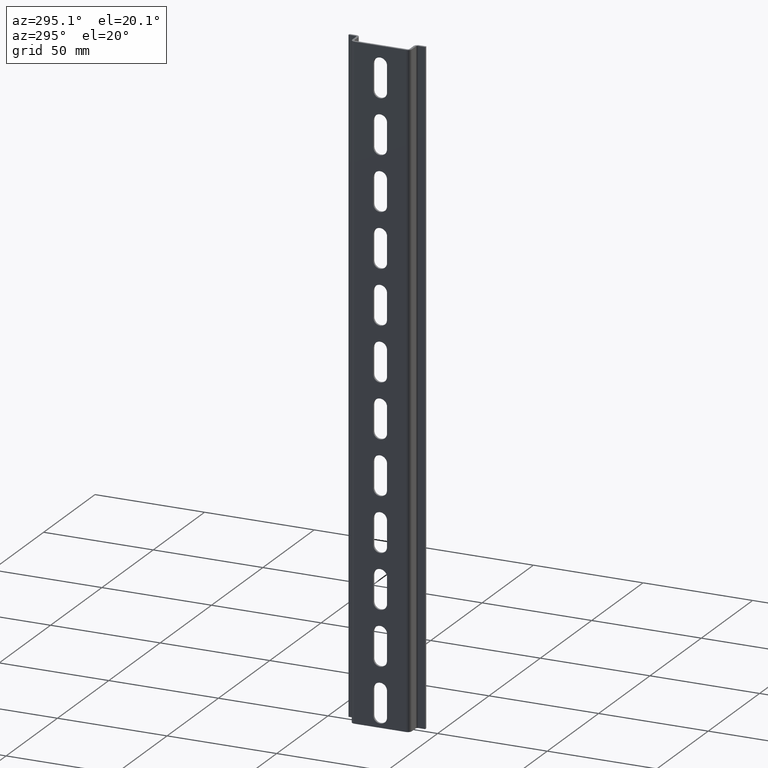
[diagram: clean part render]
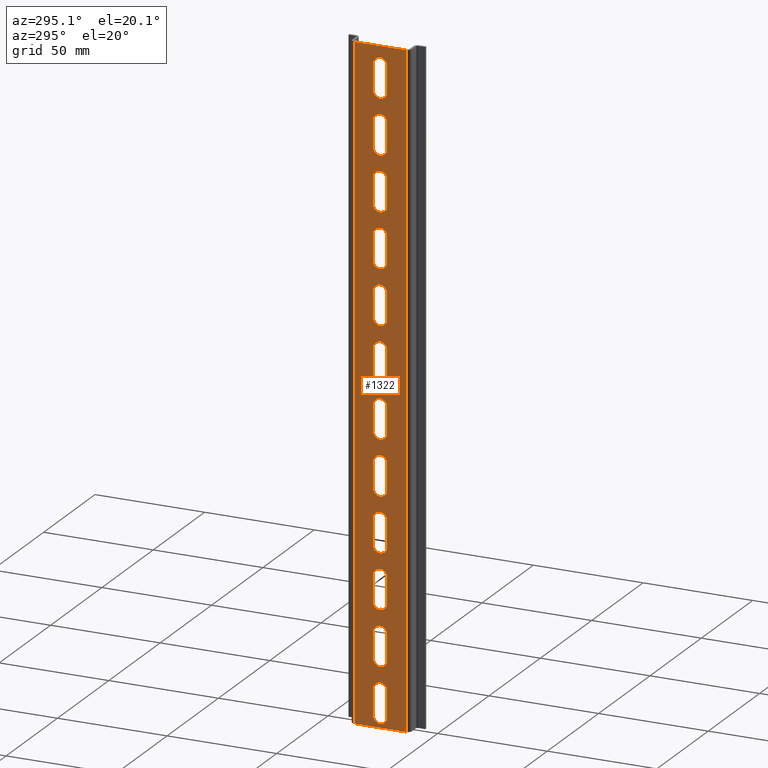
[diagram: same view with one face highlighted and labeled with its STEP entity id]
A machine part, auxiliary view. The second image highlights one B-rep face of the part: STEP entity #1322.
In plain terms, the highlighted planar face has unit normal (1, -0, 0).
Its self-contained STEP definition (entity closure, byte-faithful):
#3 = VERTEX_POINT ( 'NONE', #200 ) ;
#9 = ORIENTED_EDGE ( 'NONE', *, *, #1082, .T. ) ;
#11 = VERTEX_POINT ( 'NONE', #41 ) ;
#14 = VERTEX_POINT ( 'NONE', #197 ) ;
#15 = VERTEX_POINT ( 'NONE', #247 ) ;
#16 = VERTEX_POINT ( 'NONE', #249 ) ;
#18 = ORIENTED_EDGE ( 'NONE', *, *, #995, .T. ) ;
#19 = ORIENTED_EDGE ( 'NONE', *, *, #1011, .T. ) ;
#24 = VERTEX_POINT ( 'NONE', #206 ) ;
#29 = VERTEX_POINT ( 'NONE', #254 ) ;
#30 = ORIENTED_EDGE ( 'NONE', *, *, #1360, .T. ) ;
#31 = VERTEX_POINT ( 'NONE', #219 ) ;
#35 = VERTEX_POINT ( 'NONE', #48 ) ;
#38 = VERTEX_POINT ( 'NONE', #223 ) ;
#41 = CARTESIAN_POINT ( 'NONE',  ( 1384.825919215657900, 469.1188036583252500, 126.8499999999999700 ) ) ;
#43 = ORIENTED_EDGE ( 'NONE', *, *, #1012, .T. ) ;
#47 = VERTEX_POINT ( 'NONE', #248 ) ;
#48 = CARTESIAN_POINT ( 'NONE',  ( 1384.825919215657900, 469.1188036583252500, 76.84999999999995200 ) ) ;
#49 = ORIENTED_EDGE ( 'NONE', *, *, #1004, .T. ) ;
#52 = VERTEX_POINT ( 'NONE', #211 ) ;
#55 = VERTEX_POINT ( 'NONE', #216 ) ;
#58 = VERTEX_POINT ( 'NONE', #227 ) ;
#61 = ORIENTED_EDGE ( 'NONE', *, *, #1008, .T. ) ;
#62 = ORIENTED_EDGE ( 'NONE', *, *, #994, .T. ) ;
#65 = VERTEX_POINT ( 'NONE', #208 ) ;
#69 = VERTEX_POINT ( 'NONE', #253 ) ;
#72 = VERTEX_POINT ( 'NONE', #245 ) ;
#87 = VERTEX_POINT ( 'NONE', #193 ) ;
#107 = VERTEX_POINT ( 'NONE', #316 ) ;
#119 = VERTEX_POINT ( 'NONE', #274 ) ;
#125 = VERTEX_POINT ( 'NONE', #295 ) ;
#127 = VERTEX_POINT ( 'NONE', #267 ) ;
#129 = VERTEX_POINT ( 'NONE', #314 ) ;
#130 = VERTEX_POINT ( 'NONE', #287 ) ;
#131 = VERTEX_POINT ( 'NONE', #269 ) ;
#132 = VERTEX_POINT ( 'NONE', #282 ) ;
#135 = VERTEX_POINT ( 'NONE', #276 ) ;
#137 = VERTEX_POINT ( 'NONE', #272 ) ;
#139 = VERTEX_POINT ( 'NONE', #296 ) ;
#140 = VERTEX_POINT ( 'NONE', #302 ) ;
#141 = VERTEX_POINT ( 'NONE', #308 ) ;
#143 = VERTEX_POINT ( 'NONE', #273 ) ;
#144 = VERTEX_POINT ( 'NONE', #258 ) ;
#145 = VERTEX_POINT ( 'NONE', #277 ) ;
#146 = VERTEX_POINT ( 'NONE', #303 ) ;
#147 = VERTEX_POINT ( 'NONE', #310 ) ;
#149 = VERTEX_POINT ( 'NONE', #304 ) ;
#150 = VERTEX_POINT ( 'NONE', #263 ) ;
#151 = VERTEX_POINT ( 'NONE', #288 ) ;
#152 = VERTEX_POINT ( 'NONE', #280 ) ;
#155 = VERTEX_POINT ( 'NONE', #299 ) ;
#156 = VERTEX_POINT ( 'NONE', #300 ) ;
#157 = VERTEX_POINT ( 'NONE', #311 ) ;
#160 = VERTEX_POINT ( 'NONE', #305 ) ;
#161 = VERTEX_POINT ( 'NONE', #291 ) ;
#162 = VERTEX_POINT ( 'NONE', #306 ) ;
#163 = VERTEX_POINT ( 'NONE', #285 ) ;
#164 = VERTEX_POINT ( 'NONE', #312 ) ;
#165 = VERTEX_POINT ( 'NONE', #337 ) ;
#166 = VERTEX_POINT ( 'NONE', #357 ) ;
#167 = VERTEX_POINT ( 'NONE', #358 ) ;
#168 = VERTEX_POINT ( 'NONE', #338 ) ;
#169 = VERTEX_POINT ( 'NONE', #322 ) ;
#172 = VERTEX_POINT ( 'NONE', #327 ) ;
#174 = VERTEX_POINT ( 'NONE', #339 ) ;
#176 = VERTEX_POINT ( 'NONE', #352 ) ;
#177 = VERTEX_POINT ( 'NONE', #353 ) ;
#178 = VERTEX_POINT ( 'NONE', #355 ) ;
#179 = VERTEX_POINT ( 'NONE', #354 ) ;
#183 = VERTEX_POINT ( 'NONE', #340 ) ;
#186 = VERTEX_POINT ( 'NONE', #328 ) ;
#189 = VERTEX_POINT ( 'NONE', #330 ) ;
#190 = VERTEX_POINT ( 'NONE', #331 ) ;
#193 = CARTESIAN_POINT ( 'NONE',  ( 1384.825919215657900, 472.2688036583252800, 255.0000000000000000 ) ) ;
#197 = CARTESIAN_POINT ( 'NONE',  ( 1384.825919215657900, 472.2688036583252800, 180.0000000000000000 ) ) ;
#200 = CARTESIAN_POINT ( 'NONE',  ( 1384.825919215657900, 472.2688036583252800, 30.00000000000000000 ) ) ;
#206 = CARTESIAN_POINT ( 'NONE',  ( 1384.825919215657900, 472.2688036583252800, 79.99999999999998600 ) ) ;
#208 = CARTESIAN_POINT ( 'NONE',  ( 1384.825919215657900, 469.1188036583252500, 201.8499999999999700 ) ) ;
#211 = CARTESIAN_POINT ( 'NONE',  ( 1384.825919215657900, 472.2688036583252800, 104.9999999999999900 ) ) ;
#216 = CARTESIAN_POINT ( 'NONE',  ( 1384.825919215657900, 469.1188036583252500, 151.8499999999999700 ) ) ;
#219 = CARTESIAN_POINT ( 'NONE',  ( 1384.825919215657900, 469.1188036583252500, 101.8499999999999400 ) ) ;
#223 = CARTESIAN_POINT ( 'NONE',  ( 1384.825919215657900, 472.2688036583252800, 54.99999999999999300 ) ) ;
#227 = CARTESIAN_POINT ( 'NONE',  ( 1384.825919215657900, 469.1188036583252500, 1.849999999999962800 ) ) ;
#245 = CARTESIAN_POINT ( 'NONE',  ( 1384.825919215657900, 472.2688036583252800, 230.0000000000000000 ) ) ;
#246 = VERTEX_POINT ( 'NONE', #343 ) ;
#247 = CARTESIAN_POINT ( 'NONE',  ( 1384.825919215657900, 469.1188036583252500, 51.84999999999995200 ) ) ;
#248 = CARTESIAN_POINT ( 'NONE',  ( 1384.825919215657900, 472.2688036583252800, 5.000000000000004400 ) ) ;
#249 = CARTESIAN_POINT ( 'NONE',  ( 1384.825919215657900, 472.2688036583252800, 155.0000000000000000 ) ) ;
#253 = CARTESIAN_POINT ( 'NONE',  ( 1384.825919215657900, 469.1188036583252500, 26.84999999999995900 ) ) ;
#254 = CARTESIAN_POINT ( 'NONE',  ( 1384.825919215657900, 469.1188036583252500, 176.8499999999999700 ) ) ;
#258 = CARTESIAN_POINT ( 'NONE',  ( 1384.825919215657900, 469.1188036583252500, 294.8500000000000800 ) ) ;
#263 = CARTESIAN_POINT ( 'NONE',  ( 1384.825919215657900, 472.2688036583252800, 41.70000000000004500 ) ) ;
#267 = CARTESIAN_POINT ( 'NONE',  ( 1384.825919215657900, 469.1188036583252500, 226.8499999999999700 ) ) ;
#269 = CARTESIAN_POINT ( 'NONE',  ( 1384.825919215657900, 472.2688036583252800, 141.7000000000000500 ) ) ;
#272 = CARTESIAN_POINT ( 'NONE',  ( 1384.825919215657900, 465.9688036583252100, 130.0000000000000000 ) ) ;
#273 = CARTESIAN_POINT ( 'NONE',  ( 1384.825919215657900, 472.2688036583252800, 91.70000000000003100 ) ) ;
#274 = CARTESIAN_POINT ( 'NONE',  ( 1384.825919215657900, 472.2688036583252800, 130.0000000000000000 ) ) ;
#276 = CARTESIAN_POINT ( 'NONE',  ( 1384.825919215657900, 465.9688036583252100, 5.000000000000004400 ) ) ;
#277 = CARTESIAN_POINT ( 'NONE',  ( 1384.825919215657900, 472.2688036583252800, 266.7000000000000500 ) ) ;
#280 = CARTESIAN_POINT ( 'NONE',  ( 1384.825919215657900, 465.9688036583252100, 104.9999999999999900 ) ) ;
#282 = CARTESIAN_POINT ( 'NONE',  ( 1384.825919215657900, 465.9688036583252100, 241.7000000000000500 ) ) ;
#285 = CARTESIAN_POINT ( 'NONE',  ( 1384.825919215657900, 465.9688036583252100, 216.7000000000000500 ) ) ;
#287 = CARTESIAN_POINT ( 'NONE',  ( 1384.825919215657900, 465.9688036583252100, 166.7000000000000500 ) ) ;
#288 = CARTESIAN_POINT ( 'NONE',  ( 1384.825919215657900, 465.9688036583252100, 66.70000000000003100 ) ) ;
#291 = CARTESIAN_POINT ( 'NONE',  ( 1384.825919215657900, 465.9688036583252700, 291.7000000000000500 ) ) ;
#295 = CARTESIAN_POINT ( 'NONE',  ( 1384.825919215657900, 472.2688036583252800, 205.0000000000000300 ) ) ;
#296 = CARTESIAN_POINT ( 'NONE',  ( 1384.825919215657900, 472.2688036583252300, 280.0000000000000000 ) ) ;
#299 = CARTESIAN_POINT ( 'NONE',  ( 1384.825919215657900, 472.2688036583252800, 116.7000000000000300 ) ) ;
#300 = CARTESIAN_POINT ( 'NONE',  ( 1384.825919215657900, 472.2688036583252800, 166.7000000000000500 ) ) ;
#302 = CARTESIAN_POINT ( 'NONE',  ( 1384.825919215657900, 457.3188036583254100, 0.0000000000000000000 ) ) ;
#303 = CARTESIAN_POINT ( 'NONE',  ( 1384.825919215657900, 465.9688036583252100, 191.7000000000000500 ) ) ;
#304 = CARTESIAN_POINT ( 'NONE',  ( 1384.825919215657900, 465.9688036583252100, 41.70000000000004500 ) ) ;
#305 = CARTESIAN_POINT ( 'NONE',  ( 1384.825919215657900, 465.9688036583252100, 180.0000000000000000 ) ) ;
#306 = CARTESIAN_POINT ( 'NONE',  ( 1384.825919215657900, 472.2688036583252800, 216.7000000000000500 ) ) ;
#308 = CARTESIAN_POINT ( 'NONE',  ( 1384.825919215657900, 465.9688036583252100, 54.99999999999999300 ) ) ;
#310 = CARTESIAN_POINT ( 'NONE',  ( 1384.825919215657900, 472.2688036583252800, 191.7000000000000500 ) ) ;
#311 = CARTESIAN_POINT ( 'NONE',  ( 1384.825919215657900, 472.2688036583252800, 241.7000000000000500 ) ) ;
#312 = CARTESIAN_POINT ( 'NONE',  ( 1384.825919215657900, 465.9688036583252100, 91.70000000000003100 ) ) ;
#314 = CARTESIAN_POINT ( 'NONE',  ( 1384.825919215657900, 472.2688036583252800, 16.70000000000004900 ) ) ;
#316 = CARTESIAN_POINT ( 'NONE',  ( 1384.825919215657900, 469.1188036583252500, 251.8499999999999700 ) ) ;
#322 = CARTESIAN_POINT ( 'NONE',  ( 1384.825919215657900, 480.9188036583253200, 300.0000000000000000 ) ) ;
#327 = CARTESIAN_POINT ( 'NONE',  ( 1384.825919215657900, 465.9688036583252100, 255.0000000000000000 ) ) ;
#328 = CARTESIAN_POINT ( 'NONE',  ( 1384.825919215657900, 465.9688036583252100, 29.99999999999997200 ) ) ;
#330 = CARTESIAN_POINT ( 'NONE',  ( 1384.825919215657900, 465.9688036583252100, 116.7000000000000300 ) ) ;
#331 = CARTESIAN_POINT ( 'NONE',  ( 1384.825919215657900, 480.9188036583253200, 0.0000000000000000000 ) ) ;
#337 = CARTESIAN_POINT ( 'NONE',  ( 1384.825919215657900, 457.3188036583254100, 300.0000000000000000 ) ) ;
#338 = CARTESIAN_POINT ( 'NONE',  ( 1384.825919215657900, 465.9688036583252100, 266.7000000000000500 ) ) ;
#339 = CARTESIAN_POINT ( 'NONE',  ( 1384.825919215657900, 465.9688036583252700, 280.0000000000000000 ) ) ;
#340 = CARTESIAN_POINT ( 'NONE',  ( 1384.825919215657900, 472.2688036583252300, 291.7000000000000500 ) ) ;
#343 = CARTESIAN_POINT ( 'NONE',  ( 1384.825919215657900, 472.2688036583252800, 66.70000000000003100 ) ) ;
#346 = CARTESIAN_POINT ( 'NONE',  ( 1384.825919215657900, 469.1188036583252500, 30.00000000000000000 ) ) ;
#347 = DIRECTION ( 'NONE',  ( 1.000000000000000000, -0.0000000000000000000, 0.0000000000000000000 ) ) ;
#348 = DIRECTION ( 'NONE',  ( 0.0000000000000000000, 0.0000000000000000000, -1.000000000000000000 ) ) ;
#352 = CARTESIAN_POINT ( 'NONE',  ( 1384.825919215657900, 465.9688036583252100, 155.0000000000000000 ) ) ;
#353 = CARTESIAN_POINT ( 'NONE',  ( 1384.825919215657900, 465.9688036583252100, 79.99999999999998600 ) ) ;
#354 = CARTESIAN_POINT ( 'NONE',  ( 1384.825919215657900, 465.9688036583252100, 205.0000000000000300 ) ) ;
#355 = CARTESIAN_POINT ( 'NONE',  ( 1384.825919215657900, 465.9688036583252100, 141.7000000000000500 ) ) ;
#357 = CARTESIAN_POINT ( 'NONE',  ( 1384.825919215657900, 465.9688036583252100, 16.70000000000004900 ) ) ;
#358 = CARTESIAN_POINT ( 'NONE',  ( 1384.825919215657900, 465.9688036583252100, 230.0000000000000000 ) ) ;
#377 = LINE ( 'NONE', #389, #2775 ) ;
#378 = DIRECTION ( 'NONE',  ( 1.000000000000000000, -0.0000000000000000000, 0.0000000000000000000 ) ) ;
#387 = DIRECTION ( 'NONE',  ( 0.0000000000000000000, 0.0000000000000000000, -1.000000000000000000 ) ) ;
#389 = CARTESIAN_POINT ( 'NONE',  ( 1384.825919215657900, 465.9688036583252700, 300.0000000000000000 ) ) ;
#391 = CARTESIAN_POINT ( 'NONE',  ( 1384.825919215657900, 469.1188036583252500, 66.70000000000003100 ) ) ;
#394 = DIRECTION ( 'NONE',  ( 0.0000000000000000000, 0.0000000000000000000, -1.000000000000000000 ) ) ;
#400 = LINE ( 'NONE', #402, #2739 ) ;
#402 = CARTESIAN_POINT ( 'NONE',  ( 1384.825919215657900, 465.9688036583252100, 300.0000000000000000 ) ) ;
#405 = DIRECTION ( 'NONE',  ( -0.0000000000000000000, -0.0000000000000000000, 1.000000000000000000 ) ) ;
#475 = ORIENTED_EDGE ( 'NONE', *, *, #1063, .T. ) ;
#480 = EDGE_LOOP ( 'NONE', ( #544, #533, #527, #579, #547 ) ) ;
#482 = EDGE_LOOP ( 'NONE', ( #528, #560, #529, #546, #532 ) ) ;
#485 = EDGE_LOOP ( 'NONE', ( #578, #565, #493, #496 ) ) ;
#486 = ORIENTED_EDGE ( 'NONE', *, *, #1050, .T. ) ;
#487 = ORIENTED_EDGE ( 'NONE', *, *, #1355, .T. ) ;
#489 = ORIENTED_EDGE ( 'NONE', *, *, #1024, .T. ) ;
#490 = ORIENTED_EDGE ( 'NONE', *, *, #1074, .T. ) ;
#492 = ORIENTED_EDGE ( 'NONE', *, *, #1407, .T. ) ;
#493 = ORIENTED_EDGE ( 'NONE', *, *, #993, .F. ) ;
#494 = EDGE_LOOP ( 'NONE', ( #567, #489, #475, #541, #492 ) ) ;
#495 = EDGE_LOOP ( 'NONE', ( #539, #554, #580, #557, #581 ) ) ;
#496 = ORIENTED_EDGE ( 'NONE', *, *, #991, .F. ) ;
#500 = EDGE_LOOP ( 'NONE', ( #534, #552, #530, #572, #540 ) ) ;
#502 = EDGE_LOOP ( 'NONE', ( #960, #961, #576, #558, #564 ) ) ;
#507 = EDGE_LOOP ( 'NONE', ( #543, #490, #574, #575, #535 ) ) ;
#509 = EDGE_LOOP ( 'NONE', ( #563, #559, #486, #573, #555 ) ) ;
#510 = EDGE_LOOP ( 'NONE', ( #561, #526, #538, #556, #545 ) ) ;
#513 = EDGE_LOOP ( 'NONE', ( #61, #49, #62, #18, #30 ) ) ;
#517 = ORIENTED_EDGE ( 'NONE', *, *, #1071, .T. ) ;
#520 = EDGE_LOOP ( 'NONE', ( #542, #517, #536, #531, #487 ) ) ;
#523 = EDGE_LOOP ( 'NONE', ( #43, #19, #9, #959, #963 ) ) ;
#526 = ORIENTED_EDGE ( 'NONE', *, *, #1058, .T. ) ;
#527 = ORIENTED_EDGE ( 'NONE', *, *, #1043, .T. ) ;
#528 = ORIENTED_EDGE ( 'NONE', *, *, #1030, .F. ) ;
#529 = ORIENTED_EDGE ( 'NONE', *, *, #1346, .F. ) ;
#530 = ORIENTED_EDGE ( 'NONE', *, *, #1033, .T. ) ;
#531 = ORIENTED_EDGE ( 'NONE', *, *, #1027, .T. ) ;
#532 = ORIENTED_EDGE ( 'NONE', *, *, #980, .F. ) ;
#533 = ORIENTED_EDGE ( 'NONE', *, *, #1037, .T. ) ;
#534 = ORIENTED_EDGE ( 'NONE', *, *, #1041, .T. ) ;
#535 = ORIENTED_EDGE ( 'NONE', *, *, #1315, .T. ) ;
#536 = ORIENTED_EDGE ( 'NONE', *, *, #1028, .T. ) ;
#538 = ORIENTED_EDGE ( 'NONE', *, *, #1042, .T. ) ;
#539 = ORIENTED_EDGE ( 'NONE', *, *, #1084, .T. ) ;
#540 = ORIENTED_EDGE ( 'NONE', *, *, #1312, .T. ) ;
#541 = ORIENTED_EDGE ( 'NONE', *, *, #1083, .T. ) ;
#542 = ORIENTED_EDGE ( 'NONE', *, *, #1049, .T. ) ;
#543 = ORIENTED_EDGE ( 'NONE', *, *, #1068, .T. ) ;
#544 = ORIENTED_EDGE ( 'NONE', *, *, #1044, .T. ) ;
#545 = ORIENTED_EDGE ( 'NONE', *, *, #1329, .T. ) ;
#546 = ORIENTED_EDGE ( 'NONE', *, *, #1005, .F. ) ;
#547 = ORIENTED_EDGE ( 'NONE', *, *, #1392, .T. ) ;
#552 = ORIENTED_EDGE ( 'NONE', *, *, #1046, .T. ) ;
#554 = ORIENTED_EDGE ( 'NONE', *, *, #1061, .T. ) ;
#555 = ORIENTED_EDGE ( 'NONE', *, *, #1350, .T. ) ;
#556 = ORIENTED_EDGE ( 'NONE', *, *, #1051, .T. ) ;
#557 = ORIENTED_EDGE ( 'NONE', *, *, #1045, .T. ) ;
#558 = ORIENTED_EDGE ( 'NONE', *, *, #1040, .T. ) ;
#559 = ORIENTED_EDGE ( 'NONE', *, *, #1054, .T. ) ;
#560 = ORIENTED_EDGE ( 'NONE', *, *, #1010, .F. ) ;
#561 = ORIENTED_EDGE ( 'NONE', *, *, #1056, .T. ) ;
#563 = ORIENTED_EDGE ( 'NONE', *, *, #1052, .T. ) ;
#564 = ORIENTED_EDGE ( 'NONE', *, *, #1352, .T. ) ;
#565 = ORIENTED_EDGE ( 'NONE', *, *, #1013, .F. ) ;
#567 = ORIENTED_EDGE ( 'NONE', *, *, #1080, .T. ) ;
#572 = ORIENTED_EDGE ( 'NONE', *, *, #1059, .T. ) ;
#573 = ORIENTED_EDGE ( 'NONE', *, *, #1076, .T. ) ;
#574 = ORIENTED_EDGE ( 'NONE', *, *, #1047, .T. ) ;
#575 = ORIENTED_EDGE ( 'NONE', *, *, #1034, .T. ) ;
#576 = ORIENTED_EDGE ( 'NONE', *, *, #972, .T. ) ;
#578 = ORIENTED_EDGE ( 'NONE', *, *, #1021, .F. ) ;
#579 = ORIENTED_EDGE ( 'NONE', *, *, #1060, .T. ) ;
#580 = ORIENTED_EDGE ( 'NONE', *, *, #1070, .T. ) ;
#581 = ORIENTED_EDGE ( 'NONE', *, *, #1323, .T. ) ;
#959 = ORIENTED_EDGE ( 'NONE', *, *, #964, .T. ) ;
#960 = ORIENTED_EDGE ( 'NONE', *, *, #1023, .T. ) ;
#961 = ORIENTED_EDGE ( 'NONE', *, *, #966, .T. ) ;
#963 = ORIENTED_EDGE ( 'NONE', *, *, #1344, .T. ) ;
#964 = EDGE_CURVE ( 'NONE', #186, #69, #2725, .T. ) ;
#966 = EDGE_CURVE ( 'NONE', #246, #151, #2726, .T. ) ;
#972 = EDGE_CURVE ( 'NONE', #151, #141, #400, .T. ) ;
#980 = EDGE_CURVE ( 'NONE', #174, #161, #377, .T. ) ;
#991 = EDGE_CURVE ( 'NONE', #165, #140, #2208, .T. ) ;
#993 = EDGE_CURVE ( 'NONE', #140, #190, #2201, .T. ) ;
#994 = EDGE_CURVE ( 'NONE', #166, #135, #2214, .T. ) ;
#995 = EDGE_CURVE ( 'NONE', #135, #58, #2766, .T. ) ;
#1004 = EDGE_CURVE ( 'NONE', #129, #166, #2782, .T. ) ;
#1005 = EDGE_CURVE ( 'NONE', #161, #144, #2791, .T. ) ;
#1008 = EDGE_CURVE ( 'NONE', #47, #129, #2266, .T. ) ;
#1010 = EDGE_CURVE ( 'NONE', #183, #139, #2255, .T. ) ;
#1011 = EDGE_CURVE ( 'NONE', #150, #149, #2763, .T. ) ;
#1012 = EDGE_CURVE ( 'NONE', #3, #150, #2258, .T. ) ;
#1013 = EDGE_CURVE ( 'NONE', #190, #169, #2283, .T. ) ;
#1021 = EDGE_CURVE ( 'NONE', #169, #165, #2310, .T. ) ;
#1023 = EDGE_CURVE ( 'NONE', #38, #246, #2297, .T. ) ;
#1024 = EDGE_CURVE ( 'NONE', #157, #132, #2865, .T. ) ;
#1027 = EDGE_CURVE ( 'NONE', #177, #35, #2817, .T. ) ;
#1028 = EDGE_CURVE ( 'NONE', #164, #177, #2338, .T. ) ;
#1030 = EDGE_CURVE ( 'NONE', #139, #174, #2829, .T. ) ;
#1033 = EDGE_CURVE ( 'NONE', #163, #179, #2326, .T. ) ;
#1034 = EDGE_CURVE ( 'NONE', #172, #107, #2805, .T. ) ;
#1037 = EDGE_CURVE ( 'NONE', #131, #178, #2828, .T. ) ;
#1040 = EDGE_CURVE ( 'NONE', #141, #15, #2861, .T. ) ;
#1041 = EDGE_CURVE ( 'NONE', #125, #162, #2347, .T. ) ;
#1042 = EDGE_CURVE ( 'NONE', #189, #152, #2369, .T. ) ;
#1043 = EDGE_CURVE ( 'NONE', #178, #137, #2388, .T. ) ;
#1044 = EDGE_CURVE ( 'NONE', #119, #131, #2391, .T. ) ;
#1045 = EDGE_CURVE ( 'NONE', #176, #55, #2824, .T. ) ;
#1046 = EDGE_CURVE ( 'NONE', #162, #163, #2806, .T. ) ;
#1047 = EDGE_CURVE ( 'NONE', #168, #172, #2383, .T. ) ;
#1049 = EDGE_CURVE ( 'NONE', #24, #143, #2386, .T. ) ;
#1050 = EDGE_CURVE ( 'NONE', #146, #160, #2378, .T. ) ;
#1051 = EDGE_CURVE ( 'NONE', #152, #31, #2823, .T. ) ;
#1052 = EDGE_CURVE ( 'NONE', #14, #147, #2372, .T. ) ;
#1054 = EDGE_CURVE ( 'NONE', #147, #146, #2812, .T. ) ;
#1056 = EDGE_CURVE ( 'NONE', #52, #155, #2427, .T. ) ;
#1058 = EDGE_CURVE ( 'NONE', #155, #189, #2813, .T. ) ;
#1059 = EDGE_CURVE ( 'NONE', #179, #65, #2840, .T. ) ;
#1060 = EDGE_CURVE ( 'NONE', #137, #11, #2852, .T. ) ;
#1061 = EDGE_CURVE ( 'NONE', #156, #130, #2842, .T. ) ;
#1063 = EDGE_CURVE ( 'NONE', #132, #167, #2410, .T. ) ;
#1068 = EDGE_CURVE ( 'NONE', #87, #145, #2441, .T. ) ;
#1070 = EDGE_CURVE ( 'NONE', #130, #176, #1444, .T. ) ;
#1071 = EDGE_CURVE ( 'NONE', #143, #164, #2872, .T. ) ;
#1074 = EDGE_CURVE ( 'NONE', #145, #168, #2869, .T. ) ;
#1076 = EDGE_CURVE ( 'NONE', #160, #29, #2879, .T. ) ;
#1080 = EDGE_CURVE ( 'NONE', #72, #157, #1421, .T. ) ;
#1082 = EDGE_CURVE ( 'NONE', #149, #186, #1427, .T. ) ;
#1083 = EDGE_CURVE ( 'NONE', #167, #127, #2479, .T. ) ;
#1084 = EDGE_CURVE ( 'NONE', #16, #156, #1440, .T. ) ;
#1190 = CARTESIAN_POINT ( 'NONE',  ( 1384.825919215657900, 469.1188036583252500, 230.0000000000000000 ) ) ;
#1195 = DIRECTION ( 'NONE',  ( 0.0000000000000000000, 0.0000000000000000000, -1.000000000000000000 ) ) ;
#1198 = DIRECTION ( 'NONE',  ( 1.000000000000000000, -0.0000000000000000000, 0.0000000000000000000 ) ) ;
#1261 = DIRECTION ( 'NONE',  ( 1.000000000000000000, -0.0000000000000000000, 0.0000000000000000000 ) ) ;
#1267 = CARTESIAN_POINT ( 'NONE',  ( 1384.825919215657900, 469.1188036583252500, 130.0000000000000000 ) ) ;
#1273 = DIRECTION ( 'NONE',  ( 0.0000000000000000000, 0.0000000000000000000, -1.000000000000000000 ) ) ;
#1312 = EDGE_CURVE ( 'NONE', #65, #125, #2559, .T. ) ;
#1315 = EDGE_CURVE ( 'NONE', #107, #87, #2541, .T. ) ;
#1322 = ADVANCED_FACE ( 'NONE', ( #1945, #1948, #1943, #1944, #1949, #2004, #2000, #1976, #1991, #1977, #1997, #1999, #2001 ), #1995, .F. ) ;
#1323 = EDGE_CURVE ( 'NONE', #55, #16, #2596, .T. ) ;
#1329 = EDGE_CURVE ( 'NONE', #31, #52, #2599, .T. ) ;
#1344 = EDGE_CURVE ( 'NONE', #69, #3, #2589, .T. ) ;
#1346 = EDGE_CURVE ( 'NONE', #144, #183, #2606, .T. ) ;
#1350 = EDGE_CURVE ( 'NONE', #29, #14, #2574, .T. ) ;
#1352 = EDGE_CURVE ( 'NONE', #15, #38, #2617, .T. ) ;
#1355 = EDGE_CURVE ( 'NONE', #35, #24, #2615, .T. ) ;
#1360 = EDGE_CURVE ( 'NONE', #58, #47, #2619, .T. ) ;
#1392 = EDGE_CURVE ( 'NONE', #11, #119, #2648, .T. ) ;
#1407 = EDGE_CURVE ( 'NONE', #127, #72, #2696, .T. ) ;
#1417 = DIRECTION ( 'NONE',  ( 0.0000000000000000000, 0.0000000000000000000, -1.000000000000000000 ) ) ;
#1421 = LINE ( 'NONE', #1455, #2487 ) ;
#1422 = DIRECTION ( 'NONE',  ( 1.000000000000000000, -0.0000000000000000000, 0.0000000000000000000 ) ) ;
#1423 = DIRECTION ( 'NONE',  ( 0.0000000000000000000, 0.0000000000000000000, -1.000000000000000000 ) ) ;
#1427 = LINE ( 'NONE', #1442, #2462 ) ;
#1428 = DIRECTION ( 'NONE',  ( 0.0000000000000000000, 0.0000000000000000000, 1.000000000000000000 ) ) ;
#1431 = DIRECTION ( 'NONE',  ( 0.0000000000000000000, 0.0000000000000000000, -1.000000000000000000 ) ) ;
#1432 = DIRECTION ( 'NONE',  ( 1.000000000000000000, -0.0000000000000000000, 0.0000000000000000000 ) ) ;
#1435 = CARTESIAN_POINT ( 'NONE',  ( 1384.825919215657900, 465.9688036583252100, 300.0000000000000000 ) ) ;
#1440 = LINE ( 'NONE', #1451, #2507 ) ;
#1442 = CARTESIAN_POINT ( 'NONE',  ( 1384.825919215657900, 465.9688036583252100, 300.0000000000000000 ) ) ;
#1444 = LINE ( 'NONE', #1435, #2871 ) ;
#1445 = CARTESIAN_POINT ( 'NONE',  ( 1384.825919215657900, 469.1188036583252500, 180.0000000000000000 ) ) ;
#1450 = DIRECTION ( 'NONE',  ( 0.0000000000000000000, 0.0000000000000000000, -1.000000000000000000 ) ) ;
#1451 = CARTESIAN_POINT ( 'NONE',  ( 1384.825919215657900, 472.2688036583252800, 300.0000000000000000 ) ) ;
#1453 = CARTESIAN_POINT ( 'NONE',  ( 1384.825919215657900, 469.1188036583252500, 266.7000000000000500 ) ) ;
#1455 = CARTESIAN_POINT ( 'NONE',  ( 1384.825919215657900, 472.2688036583252800, 300.0000000000000000 ) ) ;
#1456 = DIRECTION ( 'NONE',  ( 0.0000000000000000000, 0.0000000000000000000, -1.000000000000000000 ) ) ;
#1457 = DIRECTION ( 'NONE',  ( 1.000000000000000000, -0.0000000000000000000, 0.0000000000000000000 ) ) ;
#1458 = CARTESIAN_POINT ( 'NONE',  ( 1384.825919215657900, 469.1188036583252500, 91.70000000000003100 ) ) ;
#1476 = DIRECTION ( 'NONE',  ( 0.0000000000000000000, 0.0000000000000000000, 1.000000000000000000 ) ) ;
#1498 = DIRECTION ( 'NONE',  ( 1.000000000000000000, -0.0000000000000000000, 0.0000000000000000000 ) ) ;
#1505 = CARTESIAN_POINT ( 'NONE',  ( 1384.825919215657900, 469.1188036583252500, 230.0000000000000000 ) ) ;
#1510 = DIRECTION ( 'NONE',  ( 0.0000000000000000000, 0.0000000000000000000, -1.000000000000000000 ) ) ;
#1936 = DIRECTION ( 'NONE',  ( 0.0000000000000000000, 0.0000000000000000000, -1.000000000000000000 ) ) ;
#1943 = FACE_BOUND ( 'NONE', #502, .T. ) ;
#1944 = FACE_BOUND ( 'NONE', #520, .T. ) ;
#1945 = FACE_BOUND ( 'NONE', #513, .T. ) ;
#1946 = DIRECTION ( 'NONE',  ( 0.0000000000000000000, 0.0000000000000000000, -1.000000000000000000 ) ) ;
#1948 = FACE_BOUND ( 'NONE', #523, .T. ) ;
#1949 = FACE_BOUND ( 'NONE', #510, .T. ) ;
#1959 = CARTESIAN_POINT ( 'NONE',  ( 1384.825919215657900, 469.1188036583252500, 205.0000000000000300 ) ) ;
#1964 = CARTESIAN_POINT ( 'NONE',  ( 1384.825919215657900, 469.1188036583252500, 255.0000000000000000 ) ) ;
#1965 = DIRECTION ( 'NONE',  ( 1.000000000000000000, -0.0000000000000000000, 0.0000000000000000000 ) ) ;
#1966 = DIRECTION ( 'NONE',  ( 1.000000000000000000, -0.0000000000000000000, 0.0000000000000000000 ) ) ;
#1967 = CARTESIAN_POINT ( 'NONE',  ( 1384.825919215657900, 441.1357542965276400, 300.0000000000000000 ) ) ;
#1976 = FACE_BOUND ( 'NONE', #509, .T. ) ;
#1977 = FACE_BOUND ( 'NONE', #494, .T. ) ;
#1979 = DIRECTION ( 'NONE',  ( 1.000000000000000000, -0.0000000000000000000, 0.0000000000000000000 ) ) ;
#1986 = DIRECTION ( 'NONE',  ( 1.000000000000000000, -0.0000000000000000000, 0.0000000000000000000 ) ) ;
#1990 = DIRECTION ( 'NONE',  ( 1.000000000000000000, -0.0000000000000000000, 0.0000000000000000000 ) ) ;
#1991 = FACE_BOUND ( 'NONE', #500, .T. ) ;
#1995 = PLANE ( 'NONE',  #2625 ) ;
#1997 = FACE_BOUND ( 'NONE', #507, .T. ) ;
#1998 = DIRECTION ( 'NONE',  ( 0.0000000000000000000, 0.0000000000000000000, -1.000000000000000000 ) ) ;
#1999 = FACE_OUTER_BOUND ( 'NONE', #485, .T. ) ;
#2000 = FACE_BOUND ( 'NONE', #495, .T. ) ;
#2001 = FACE_BOUND ( 'NONE', #482, .T. ) ;
#2004 = FACE_BOUND ( 'NONE', #480, .T. ) ;
#2005 = DIRECTION ( 'NONE',  ( 0.0000000000000000000, 0.0000000000000000000, -1.000000000000000000 ) ) ;
#2007 = CARTESIAN_POINT ( 'NONE',  ( 1384.825919215657900, 469.1188036583252500, 104.9999999999999900 ) ) ;
#2008 = CARTESIAN_POINT ( 'NONE',  ( 1384.825919215657900, 469.1188036583252500, 155.0000000000000000 ) ) ;
#2010 = DIRECTION ( 'NONE',  ( 0.0000000000000000000, 0.0000000000000000000, -1.000000000000000000 ) ) ;
#2020 = CARTESIAN_POINT ( 'NONE',  ( 1384.825919215657900, 469.1188036583252500, 30.00000000000000000 ) ) ;
#2022 = DIRECTION ( 'NONE',  ( 1.000000000000000000, -0.0000000000000000000, 0.0000000000000000000 ) ) ;
#2023 = DIRECTION ( 'NONE',  ( 0.0000000000000000000, 0.0000000000000000000, -1.000000000000000000 ) ) ;
#2059 = DIRECTION ( 'NONE',  ( 0.0000000000000000000, 0.0000000000000000000, 1.000000000000000000 ) ) ;
#2064 = DIRECTION ( 'NONE',  ( 1.000000000000000000, -0.0000000000000000000, 0.0000000000000000000 ) ) ;
#2066 = DIRECTION ( 'NONE',  ( 0.0000000000000000000, 0.0000000000000000000, -1.000000000000000000 ) ) ;
#2067 = DIRECTION ( 'NONE',  ( 0.0000000000000000000, 0.0000000000000000000, -1.000000000000000000 ) ) ;
#2068 = CARTESIAN_POINT ( 'NONE',  ( 1384.825919215657900, 469.1188036583252500, 54.99999999999999300 ) ) ;
#2070 = DIRECTION ( 'NONE',  ( 1.000000000000000000, -0.0000000000000000000, 0.0000000000000000000 ) ) ;
#2074 = CARTESIAN_POINT ( 'NONE',  ( 1384.825919215657900, 469.1188036583252500, 79.99999999999998600 ) ) ;
#2087 = DIRECTION ( 'NONE',  ( -1.000000000000000000, -0.0000000000000000000, -0.0000000000000000000 ) ) ;
#2090 = DIRECTION ( 'NONE',  ( 1.000000000000000000, -0.0000000000000000000, 0.0000000000000000000 ) ) ;
#2091 = CARTESIAN_POINT ( 'NONE',  ( 1384.825919215657900, 469.1188036583252500, 291.7000000000000500 ) ) ;
#2094 = DIRECTION ( 'NONE',  ( 0.0000000000000000000, 0.0000000000000000000, -1.000000000000000000 ) ) ;
#2101 = CARTESIAN_POINT ( 'NONE',  ( 1384.825919215657900, 469.1188036583252500, 180.0000000000000000 ) ) ;
#2116 = DIRECTION ( 'NONE',  ( 1.000000000000000000, -0.0000000000000000000, 0.0000000000000000000 ) ) ;
#2124 = CARTESIAN_POINT ( 'NONE',  ( 1384.825919215657900, 469.1188036583252500, 5.000000000000004400 ) ) ;
#2134 = DIRECTION ( 'NONE',  ( 0.0000000000000000000, 0.0000000000000000000, -1.000000000000000000 ) ) ;
#2201 = LINE ( 'NONE', #2225, #2770 ) ;
#2208 = LINE ( 'NONE', #2212, #2746 ) ;
#2211 = DIRECTION ( 'NONE',  ( 0.0000000000000000000, 1.000000000000000000, 0.0000000000000000000 ) ) ;
#2212 = CARTESIAN_POINT ( 'NONE',  ( 1384.825919215657900, 457.3188036583254100, 300.0000000000000000 ) ) ;
#2214 = LINE ( 'NONE', #2215, #2794 ) ;
#2215 = CARTESIAN_POINT ( 'NONE',  ( 1384.825919215657900, 465.9688036583252100, 300.0000000000000000 ) ) ;
#2217 = DIRECTION ( 'NONE',  ( 0.0000000000000000000, 0.0000000000000000000, -1.000000000000000000 ) ) ;
#2222 = CARTESIAN_POINT ( 'NONE',  ( 1384.825919215657900, 469.1188036583252500, 5.000000000000004400 ) ) ;
#2225 = CARTESIAN_POINT ( 'NONE',  ( 1384.825919215657900, 441.1357542965276400, 0.0000000000000000000 ) ) ;
#2227 = DIRECTION ( 'NONE',  ( 1.000000000000000000, -0.0000000000000000000, 0.0000000000000000000 ) ) ;
#2228 = DIRECTION ( 'NONE',  ( 0.0000000000000000000, 0.0000000000000000000, -1.000000000000000000 ) ) ;
#2229 = DIRECTION ( 'NONE',  ( 0.0000000000000000000, 0.0000000000000000000, -1.000000000000000000 ) ) ;
#2235 = DIRECTION ( 'NONE',  ( 0.0000000000000000000, 0.0000000000000000000, 1.000000000000000000 ) ) ;
#2238 = CARTESIAN_POINT ( 'NONE',  ( 1384.825919215657900, 472.2688036583252300, 300.0000000000000000 ) ) ;
#2248 = CARTESIAN_POINT ( 'NONE',  ( 1384.825919215657900, 469.1188036583252500, 16.70000000000004900 ) ) ;
#2255 = LINE ( 'NONE', #2238, #2792 ) ;
#2256 = CARTESIAN_POINT ( 'NONE',  ( 1384.825919215657900, 469.1188036583252500, 291.7000000000000500 ) ) ;
#2257 = CARTESIAN_POINT ( 'NONE',  ( 1384.825919215657900, 472.2688036583252800, 300.0000000000000000 ) ) ;
#2258 = LINE ( 'NONE', #2260, #2789 ) ;
#2260 = CARTESIAN_POINT ( 'NONE',  ( 1384.825919215657900, 472.2688036583252800, 300.0000000000000000 ) ) ;
#2261 = DIRECTION ( 'NONE',  ( 0.0000000000000000000, 0.0000000000000000000, -1.000000000000000000 ) ) ;
#2262 = DIRECTION ( 'NONE',  ( 1.000000000000000000, -0.0000000000000000000, 0.0000000000000000000 ) ) ;
#2266 = LINE ( 'NONE', #2257, #2783 ) ;
#2267 = DIRECTION ( 'NONE',  ( 0.0000000000000000000, 0.0000000000000000000, -1.000000000000000000 ) ) ;
#2271 = DIRECTION ( 'NONE',  ( 0.0000000000000000000, 0.0000000000000000000, 1.000000000000000000 ) ) ;
#2274 = DIRECTION ( 'NONE',  ( -1.000000000000000000, -0.0000000000000000000, -0.0000000000000000000 ) ) ;
#2277 = DIRECTION ( 'NONE',  ( -0.0000000000000000000, -1.000000000000000000, -0.0000000000000000000 ) ) ;
#2282 = CARTESIAN_POINT ( 'NONE',  ( 1384.825919215657900, 472.2688036583252800, 300.0000000000000000 ) ) ;
#2283 = LINE ( 'NONE', #2318, #2790 ) ;
#2284 = DIRECTION ( 'NONE',  ( -0.0000000000000000000, -0.0000000000000000000, 1.000000000000000000 ) ) ;
#2286 = DIRECTION ( 'NONE',  ( 0.0000000000000000000, 0.0000000000000000000, 1.000000000000000000 ) ) ;
#2291 = DIRECTION ( 'NONE',  ( 0.0000000000000000000, 0.0000000000000000000, -1.000000000000000000 ) ) ;
#2297 = LINE ( 'NONE', #2282, #2843 ) ;
#2302 = DIRECTION ( 'NONE',  ( 1.000000000000000000, -0.0000000000000000000, 0.0000000000000000000 ) ) ;
#2307 = CARTESIAN_POINT ( 'NONE',  ( 1384.825919215657900, 469.1188036583252500, 241.7000000000000500 ) ) ;
#2309 = DIRECTION ( 'NONE',  ( 1.000000000000000000, -0.0000000000000000000, 0.0000000000000000000 ) ) ;
#2310 = LINE ( 'NONE', #2311, #2856 ) ;
#2311 = CARTESIAN_POINT ( 'NONE',  ( 1384.825919215657900, 441.1357542965276400, 300.0000000000000000 ) ) ;
#2313 = DIRECTION ( 'NONE',  ( 0.0000000000000000000, 0.0000000000000000000, -1.000000000000000000 ) ) ;
#2316 = CARTESIAN_POINT ( 'NONE',  ( 1384.825919215657900, 469.1188036583252500, 41.70000000000004500 ) ) ;
#2318 = CARTESIAN_POINT ( 'NONE',  ( 1384.825919215657900, 480.9188036583253200, 300.0000000000000000 ) ) ;
#2319 = DIRECTION ( 'NONE',  ( 0.0000000000000000000, 0.0000000000000000000, 1.000000000000000000 ) ) ;
#2326 = LINE ( 'NONE', #2330, #2839 ) ;
#2330 = CARTESIAN_POINT ( 'NONE',  ( 1384.825919215657900, 465.9688036583252100, 300.0000000000000000 ) ) ;
#2331 = DIRECTION ( 'NONE',  ( 0.0000000000000000000, 0.0000000000000000000, -1.000000000000000000 ) ) ;
#2333 = DIRECTION ( 'NONE',  ( 1.000000000000000000, -0.0000000000000000000, 0.0000000000000000000 ) ) ;
#2335 = DIRECTION ( 'NONE',  ( 0.0000000000000000000, 0.0000000000000000000, -1.000000000000000000 ) ) ;
#2336 = DIRECTION ( 'NONE',  ( -1.000000000000000000, -0.0000000000000000000, -0.0000000000000000000 ) ) ;
#2338 = LINE ( 'NONE', #2356, #2835 ) ;
#2339 = CARTESIAN_POINT ( 'NONE',  ( 1384.825919215657900, 469.1188036583252500, 280.0000000000000000 ) ) ;
#2340 = CARTESIAN_POINT ( 'NONE',  ( 1384.825919215657900, 469.1188036583252500, 141.7000000000000500 ) ) ;
#2341 = DIRECTION ( 'NONE',  ( 0.0000000000000000000, 0.0000000000000000000, -1.000000000000000000 ) ) ;
#2344 = DIRECTION ( 'NONE',  ( 1.000000000000000000, -0.0000000000000000000, 0.0000000000000000000 ) ) ;
#2345 = DIRECTION ( 'NONE',  ( 0.0000000000000000000, 0.0000000000000000000, -1.000000000000000000 ) ) ;
#2347 = LINE ( 'NONE', #2352, #2804 ) ;
#2352 = CARTESIAN_POINT ( 'NONE',  ( 1384.825919215657900, 472.2688036583252800, 300.0000000000000000 ) ) ;
#2353 = DIRECTION ( 'NONE',  ( 1.000000000000000000, -0.0000000000000000000, 0.0000000000000000000 ) ) ;
#2356 = CARTESIAN_POINT ( 'NONE',  ( 1384.825919215657900, 465.9688036583252100, 300.0000000000000000 ) ) ;
#2357 = DIRECTION ( 'NONE',  ( 0.0000000000000000000, 0.0000000000000000000, -1.000000000000000000 ) ) ;
#2358 = CARTESIAN_POINT ( 'NONE',  ( 1384.825919215657900, 469.1188036583252500, 79.99999999999998600 ) ) ;
#2360 = DIRECTION ( 'NONE',  ( 0.0000000000000000000, 0.0000000000000000000, 1.000000000000000000 ) ) ;
#2363 = CARTESIAN_POINT ( 'NONE',  ( 1384.825919215657900, 469.1188036583252500, 255.0000000000000000 ) ) ;
#2364 = CARTESIAN_POINT ( 'NONE',  ( 1384.825919215657900, 472.2688036583252800, 300.0000000000000000 ) ) ;
#2365 = DIRECTION ( 'NONE',  ( 0.0000000000000000000, 0.0000000000000000000, -1.000000000000000000 ) ) ;
#2366 = CARTESIAN_POINT ( 'NONE',  ( 1384.825919215657900, 469.1188036583252500, 155.0000000000000000 ) ) ;
#2367 = DIRECTION ( 'NONE',  ( 0.0000000000000000000, 0.0000000000000000000, -1.000000000000000000 ) ) ;
#2368 = CARTESIAN_POINT ( 'NONE',  ( 1384.825919215657900, 465.9688036583252100, 300.0000000000000000 ) ) ;
#2369 = LINE ( 'NONE', #2402, #2849 ) ;
#2370 = DIRECTION ( 'NONE',  ( 0.0000000000000000000, 0.0000000000000000000, -1.000000000000000000 ) ) ;
#2372 = LINE ( 'NONE', #2373, #2832 ) ;
#2373 = CARTESIAN_POINT ( 'NONE',  ( 1384.825919215657900, 472.2688036583252800, 300.0000000000000000 ) ) ;
#2376 = DIRECTION ( 'NONE',  ( 0.0000000000000000000, 0.0000000000000000000, 1.000000000000000000 ) ) ;
#2378 = LINE ( 'NONE', #2368, #2825 ) ;
#2380 = DIRECTION ( 'NONE',  ( 0.0000000000000000000, 0.0000000000000000000, 1.000000000000000000 ) ) ;
#2382 = DIRECTION ( 'NONE',  ( 1.000000000000000000, -0.0000000000000000000, 0.0000000000000000000 ) ) ;
#2383 = LINE ( 'NONE', #2404, #2851 ) ;
#2384 = CARTESIAN_POINT ( 'NONE',  ( 1384.825919215657900, 465.9688036583252100, 300.0000000000000000 ) ) ;
#2386 = LINE ( 'NONE', #2364, #2838 ) ;
#2387 = CARTESIAN_POINT ( 'NONE',  ( 1384.825919215657900, 469.1188036583252500, 104.9999999999999900 ) ) ;
#2388 = LINE ( 'NONE', #2384, #2830 ) ;
#2389 = DIRECTION ( 'NONE',  ( 0.0000000000000000000, 0.0000000000000000000, -1.000000000000000000 ) ) ;
#2390 = CARTESIAN_POINT ( 'NONE',  ( 1384.825919215657900, 469.1188036583252500, 216.7000000000000500 ) ) ;
#2391 = LINE ( 'NONE', #2400, #2821 ) ;
#2392 = DIRECTION ( 'NONE',  ( 0.0000000000000000000, 0.0000000000000000000, 1.000000000000000000 ) ) ;
#2393 = DIRECTION ( 'NONE',  ( 1.000000000000000000, -0.0000000000000000000, 0.0000000000000000000 ) ) ;
#2394 = CARTESIAN_POINT ( 'NONE',  ( 1384.825919215657900, 469.1188036583252500, 54.99999999999999300 ) ) ;
#2395 = DIRECTION ( 'NONE',  ( 0.0000000000000000000, 0.0000000000000000000, -1.000000000000000000 ) ) ;
#2397 = DIRECTION ( 'NONE',  ( 0.0000000000000000000, 0.0000000000000000000, -1.000000000000000000 ) ) ;
#2398 = DIRECTION ( 'NONE',  ( 1.000000000000000000, -0.0000000000000000000, 0.0000000000000000000 ) ) ;
#2399 = DIRECTION ( 'NONE',  ( 1.000000000000000000, -0.0000000000000000000, 0.0000000000000000000 ) ) ;
#2400 = CARTESIAN_POINT ( 'NONE',  ( 1384.825919215657900, 472.2688036583252800, 300.0000000000000000 ) ) ;
#2401 = DIRECTION ( 'NONE',  ( 0.0000000000000000000, 0.0000000000000000000, 1.000000000000000000 ) ) ;
#2402 = CARTESIAN_POINT ( 'NONE',  ( 1384.825919215657900, 465.9688036583252100, 300.0000000000000000 ) ) ;
#2403 = DIRECTION ( 'NONE',  ( 0.0000000000000000000, 0.0000000000000000000, -1.000000000000000000 ) ) ;
#2404 = CARTESIAN_POINT ( 'NONE',  ( 1384.825919215657900, 465.9688036583252100, 300.0000000000000000 ) ) ;
#2405 = DIRECTION ( 'NONE',  ( 0.0000000000000000000, 0.0000000000000000000, -1.000000000000000000 ) ) ;
#2406 = DIRECTION ( 'NONE',  ( 0.0000000000000000000, 0.0000000000000000000, -1.000000000000000000 ) ) ;
#2407 = CARTESIAN_POINT ( 'NONE',  ( 1384.825919215657900, 469.1188036583252500, 130.0000000000000000 ) ) ;
#2408 = CARTESIAN_POINT ( 'NONE',  ( 1384.825919215657900, 465.9688036583252100, 300.0000000000000000 ) ) ;
#2409 = DIRECTION ( 'NONE',  ( 0.0000000000000000000, 0.0000000000000000000, -1.000000000000000000 ) ) ;
#2410 = LINE ( 'NONE', #2408, #2833 ) ;
#2412 = DIRECTION ( 'NONE',  ( 0.0000000000000000000, 0.0000000000000000000, -1.000000000000000000 ) ) ;
#2415 = DIRECTION ( 'NONE',  ( 0.0000000000000000000, 0.0000000000000000000, -1.000000000000000000 ) ) ;
#2417 = CARTESIAN_POINT ( 'NONE',  ( 1384.825919215657900, 469.1188036583252500, 116.7000000000000300 ) ) ;
#2418 = DIRECTION ( 'NONE',  ( 1.000000000000000000, -0.0000000000000000000, 0.0000000000000000000 ) ) ;
#2420 = DIRECTION ( 'NONE',  ( 1.000000000000000000, -0.0000000000000000000, 0.0000000000000000000 ) ) ;
#2424 = DIRECTION ( 'NONE',  ( 0.0000000000000000000, 0.0000000000000000000, 1.000000000000000000 ) ) ;
#2425 = DIRECTION ( 'NONE',  ( 1.000000000000000000, -0.0000000000000000000, 0.0000000000000000000 ) ) ;
#2427 = LINE ( 'NONE', #2444, #2836 ) ;
#2428 = CARTESIAN_POINT ( 'NONE',  ( 1384.825919215657900, 469.1188036583252500, 166.7000000000000500 ) ) ;
#2429 = DIRECTION ( 'NONE',  ( 1.000000000000000000, -0.0000000000000000000, 0.0000000000000000000 ) ) ;
#2432 = CARTESIAN_POINT ( 'NONE',  ( 1384.825919215657900, 469.1188036583252500, 191.7000000000000500 ) ) ;
#2439 = DIRECTION ( 'NONE',  ( 0.0000000000000000000, 0.0000000000000000000, -1.000000000000000000 ) ) ;
#2441 = LINE ( 'NONE', #2443, #2875 ) ;
#2443 = CARTESIAN_POINT ( 'NONE',  ( 1384.825919215657900, 472.2688036583252800, 300.0000000000000000 ) ) ;
#2444 = CARTESIAN_POINT ( 'NONE',  ( 1384.825919215657900, 472.2688036583252800, 300.0000000000000000 ) ) ;
#2446 = DIRECTION ( 'NONE',  ( 0.0000000000000000000, 0.0000000000000000000, 1.000000000000000000 ) ) ;
#2447 = DIRECTION ( 'NONE',  ( 1.000000000000000000, -0.0000000000000000000, 0.0000000000000000000 ) ) ;
#2449 = DIRECTION ( 'NONE',  ( 0.0000000000000000000, 0.0000000000000000000, -1.000000000000000000 ) ) ;
#2450 = CARTESIAN_POINT ( 'NONE',  ( 1384.825919215657900, 469.1188036583252500, 205.0000000000000300 ) ) ;
#2462 = VECTOR ( 'NONE', #1450, 1000.000000000000000 ) ;
#2477 = AXIS2_PLACEMENT_3D ( 'NONE', #1505, #1498, #1510 ) ;
#2479 = CIRCLE ( 'NONE', #2477, 3.150000000000041700 ) ;
#2487 = VECTOR ( 'NONE', #1428, 1000.000000000000000 ) ;
#2499 = AXIS2_PLACEMENT_3D ( 'NONE', #1445, #1432, #1423 ) ;
#2507 = VECTOR ( 'NONE', #1476, 1000.000000000000000 ) ;
#2541 = CIRCLE ( 'NONE', #2560, 3.150000000000041700 ) ;
#2554 = AXIS2_PLACEMENT_3D ( 'NONE', #1959, #1966, #1946 ) ;
#2559 = CIRCLE ( 'NONE', #2554, 3.150000000000041700 ) ;
#2560 = AXIS2_PLACEMENT_3D ( 'NONE', #1964, #1965, #1936 ) ;
#2574 = CIRCLE ( 'NONE', #2604, 3.150000000000041700 ) ;
#2575 = AXIS2_PLACEMENT_3D ( 'NONE', #2020, #2022, #2023 ) ;
#2585 = AXIS2_PLACEMENT_3D ( 'NONE', #2008, #1979, #1998 ) ;
#2589 = CIRCLE ( 'NONE', #2575, 3.150000000000041700 ) ;
#2596 = CIRCLE ( 'NONE', #2585, 3.150000000000041700 ) ;
#2599 = CIRCLE ( 'NONE', #2600, 3.150000000000041700 ) ;
#2600 = AXIS2_PLACEMENT_3D ( 'NONE', #2007, #1990, #2010 ) ;
#2604 = AXIS2_PLACEMENT_3D ( 'NONE', #2101, #2070, #2094 ) ;
#2606 = CIRCLE ( 'NONE', #2628, 3.149999999999986100 ) ;
#2613 = AXIS2_PLACEMENT_3D ( 'NONE', #2074, #2064, #2067 ) ;
#2614 = AXIS2_PLACEMENT_3D ( 'NONE', #2068, #2090, #2066 ) ;
#2615 = CIRCLE ( 'NONE', #2613, 3.150000000000041700 ) ;
#2617 = CIRCLE ( 'NONE', #2614, 3.150000000000041700 ) ;
#2619 = CIRCLE ( 'NONE', #2646, 3.150000000000041700 ) ;
#2625 = AXIS2_PLACEMENT_3D ( 'NONE', #1967, #1986, #2005 ) ;
#2628 = AXIS2_PLACEMENT_3D ( 'NONE', #2091, #2087, #2059 ) ;
#2646 = AXIS2_PLACEMENT_3D ( 'NONE', #2124, #2116, #2134 ) ;
#2648 = CIRCLE ( 'NONE', #2649, 3.150000000000041700 ) ;
#2649 = AXIS2_PLACEMENT_3D ( 'NONE', #1267, #1261, #1273 ) ;
#2696 = CIRCLE ( 'NONE', #2703, 3.150000000000041700 ) ;
#2703 = AXIS2_PLACEMENT_3D ( 'NONE', #1190, #1198, #1195 ) ;
#2725 = CIRCLE ( 'NONE', #2731, 3.150000000000041700 ) ;
#2726 = CIRCLE ( 'NONE', #2728, 3.150000000000041700 ) ;
#2728 = AXIS2_PLACEMENT_3D ( 'NONE', #391, #378, #387 ) ;
#2731 = AXIS2_PLACEMENT_3D ( 'NONE', #346, #347, #348 ) ;
#2739 = VECTOR ( 'NONE', #394, 1000.000000000000000 ) ;
#2742 = AXIS2_PLACEMENT_3D ( 'NONE', #2248, #2262, #2267 ) ;
#2744 = AXIS2_PLACEMENT_3D ( 'NONE', #2316, #2302, #2291 ) ;
#2746 = VECTOR ( 'NONE', #2229, 1000.000000000000000 ) ;
#2763 = CIRCLE ( 'NONE', #2744, 3.150000000000041700 ) ;
#2766 = CIRCLE ( 'NONE', #2797, 3.150000000000041700 ) ;
#2769 = AXIS2_PLACEMENT_3D ( 'NONE', #2256, #2274, #2235 ) ;
#2770 = VECTOR ( 'NONE', #2211, 1000.000000000000000 ) ;
#2775 = VECTOR ( 'NONE', #405, 1000.000000000000000 ) ;
#2782 = CIRCLE ( 'NONE', #2742, 3.150000000000041700 ) ;
#2783 = VECTOR ( 'NONE', #2271, 1000.000000000000000 ) ;
#2789 = VECTOR ( 'NONE', #2319, 1000.000000000000000 ) ;
#2790 = VECTOR ( 'NONE', #2284, 1000.000000000000000 ) ;
#2791 = CIRCLE ( 'NONE', #2769, 3.149999999999986100 ) ;
#2792 = VECTOR ( 'NONE', #2261, 1000.000000000000000 ) ;
#2794 = VECTOR ( 'NONE', #2217, 1000.000000000000000 ) ;
#2797 = AXIS2_PLACEMENT_3D ( 'NONE', #2222, #2227, #2228 ) ;
#2804 = VECTOR ( 'NONE', #2401, 1000.000000000000000 ) ;
#2805 = CIRCLE ( 'NONE', #2818, 3.150000000000041700 ) ;
#2806 = CIRCLE ( 'NONE', #2808, 3.150000000000041700 ) ;
#2807 = AXIS2_PLACEMENT_3D ( 'NONE', #2366, #2393, #2367 ) ;
#2808 = AXIS2_PLACEMENT_3D ( 'NONE', #2390, #2399, #2395 ) ;
#2809 = AXIS2_PLACEMENT_3D ( 'NONE', #2358, #2353, #2331 ) ;
#2812 = CIRCLE ( 'NONE', #2857, 3.150000000000041700 ) ;
#2813 = CIRCLE ( 'NONE', #2831, 3.150000000000041700 ) ;
#2814 = AXIS2_PLACEMENT_3D ( 'NONE', #2450, #2425, #2406 ) ;
#2816 = AXIS2_PLACEMENT_3D ( 'NONE', #2307, #2309, #2313 ) ;
#2817 = CIRCLE ( 'NONE', #2809, 3.150000000000041700 ) ;
#2818 = AXIS2_PLACEMENT_3D ( 'NONE', #2363, #2333, #2357 ) ;
#2821 = VECTOR ( 'NONE', #2376, 1000.000000000000000 ) ;
#2823 = CIRCLE ( 'NONE', #2844, 3.150000000000041700 ) ;
#2824 = CIRCLE ( 'NONE', #2807, 3.150000000000041700 ) ;
#2825 = VECTOR ( 'NONE', #2397, 1000.000000000000000 ) ;
#2826 = AXIS2_PLACEMENT_3D ( 'NONE', #2407, #2447, #2439 ) ;
#2828 = CIRCLE ( 'NONE', #2848, 3.150000000000041700 ) ;
#2829 = CIRCLE ( 'NONE', #2853, 3.149999999999986100 ) ;
#2830 = VECTOR ( 'NONE', #2389, 1000.000000000000000 ) ;
#2831 = AXIS2_PLACEMENT_3D ( 'NONE', #2417, #2418, #2449 ) ;
#2832 = VECTOR ( 'NONE', #2392, 1000.000000000000000 ) ;
#2833 = VECTOR ( 'NONE', #2415, 1000.000000000000000 ) ;
#2834 = AXIS2_PLACEMENT_3D ( 'NONE', #2428, #2420, #2412 ) ;
#2835 = VECTOR ( 'NONE', #2335, 1000.000000000000000 ) ;
#2836 = VECTOR ( 'NONE', #2424, 1000.000000000000000 ) ;
#2838 = VECTOR ( 'NONE', #2380, 1000.000000000000000 ) ;
#2839 = VECTOR ( 'NONE', #2341, 1000.000000000000000 ) ;
#2840 = CIRCLE ( 'NONE', #2814, 3.150000000000041700 ) ;
#2842 = CIRCLE ( 'NONE', #2834, 3.150000000000041700 ) ;
#2843 = VECTOR ( 'NONE', #2286, 1000.000000000000000 ) ;
#2844 = AXIS2_PLACEMENT_3D ( 'NONE', #2387, #2382, #2370 ) ;
#2848 = AXIS2_PLACEMENT_3D ( 'NONE', #2340, #2344, #2345 ) ;
#2849 = VECTOR ( 'NONE', #2403, 1000.000000000000000 ) ;
#2851 = VECTOR ( 'NONE', #2405, 1000.000000000000000 ) ;
#2852 = CIRCLE ( 'NONE', #2826, 3.150000000000041700 ) ;
#2853 = AXIS2_PLACEMENT_3D ( 'NONE', #2339, #2336, #2360 ) ;
#2856 = VECTOR ( 'NONE', #2277, 1000.000000000000000 ) ;
#2857 = AXIS2_PLACEMENT_3D ( 'NONE', #2432, #2429, #2409 ) ;
#2861 = CIRCLE ( 'NONE', #2862, 3.150000000000041700 ) ;
#2862 = AXIS2_PLACEMENT_3D ( 'NONE', #2394, #2398, #2365 ) ;
#2865 = CIRCLE ( 'NONE', #2816, 3.150000000000041700 ) ;
#2868 = AXIS2_PLACEMENT_3D ( 'NONE', #1458, #1422, #1431 ) ;
#2869 = CIRCLE ( 'NONE', #2874, 3.150000000000041700 ) ;
#2871 = VECTOR ( 'NONE', #1456, 1000.000000000000000 ) ;
#2872 = CIRCLE ( 'NONE', #2868, 3.150000000000041700 ) ;
#2874 = AXIS2_PLACEMENT_3D ( 'NONE', #1453, #1457, #1417 ) ;
#2875 = VECTOR ( 'NONE', #2446, 1000.000000000000000 ) ;
#2879 = CIRCLE ( 'NONE', #2499, 3.150000000000041700 ) ;